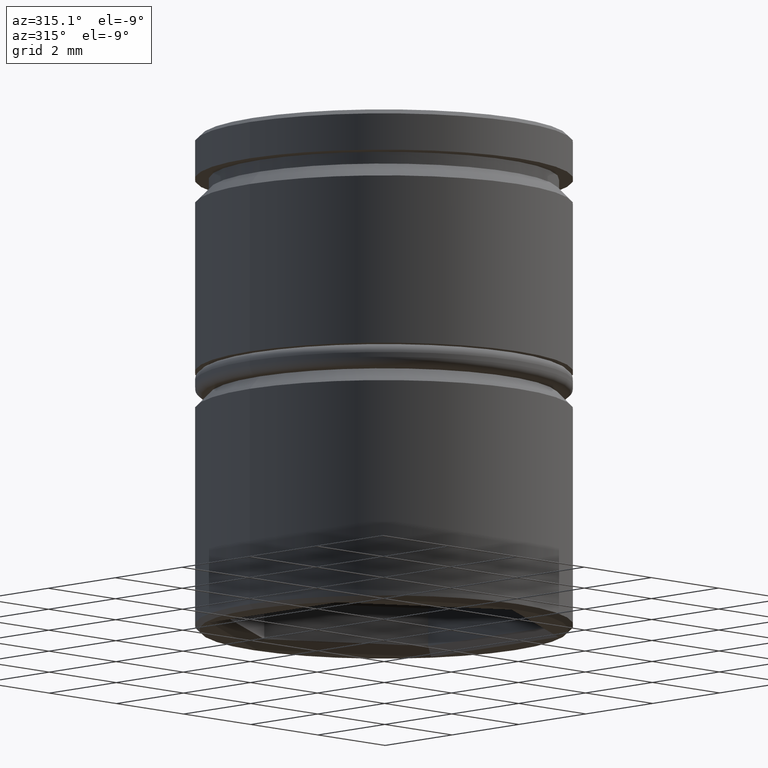
[diagram: clean part render]
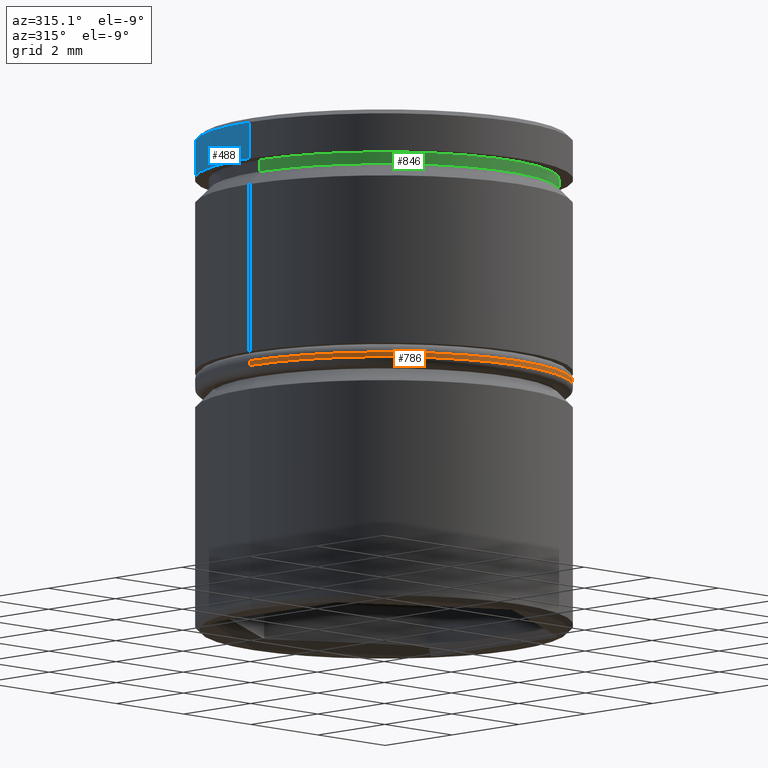
[diagram: same view with three faces highlighted in distinct colors, each labeled with its STEP entity id]
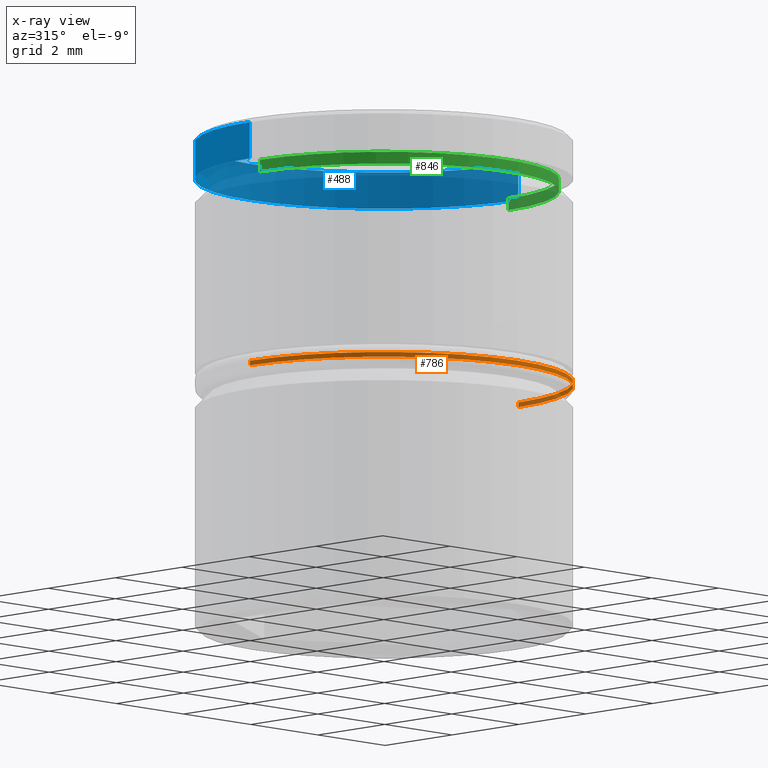
[diagram: x-ray of the same camera — body ghosted, the three highlighted faces saturated]
A machine part, auxiliary view with three faces highlighted in distinct colors.
The next image is the same camera in x-ray (body ghosted, the three faces saturated) — at least one of them is partly hidden behind the body in this view.
Their STEP definitions:

[orange] entity #786 — the highlighted cylindrical surface (partial cylindrical patch) has radius 4 mm, axis along (-0, -0, 1).
#2 = EDGE_CURVE ( 'NONE', #689, #848, #227, .T. ) ;
#6 = VERTEX_POINT ( 'NONE', #337 ) ;
#28 = DIRECTION ( 'NONE',  ( 0.000000000000000000, 0.000000000000000000, 1.000000000000000000 ) ) ;
#54 = VECTOR ( 'NONE', #299, 1000.000000000000000 ) ;
#65 = ORIENTED_EDGE ( 'NONE', *, *, #806, .T. ) ;
#110 = AXIS2_PLACEMENT_3D ( 'NONE', #873, #399, #119 ) ;
#119 = DIRECTION ( 'NONE',  ( 1.000000000000000000, 0.000000000000000000, 0.000000000000000000 ) ) ;
#124 = ORIENTED_EDGE ( 'NONE', *, *, #2, .T. ) ;
#146 = LINE ( 'NONE', #597, #305 ) ;
#157 = DIRECTION ( 'NONE',  ( 0.000000000000000000, 0.000000000000000000, -1.000000000000000000 ) ) ;
#201 = EDGE_CURVE ( 'NONE', #6, #346, #1016, .T. ) ;
#227 = CIRCLE ( 'NONE', #419, 4.000000000000000000 ) ;
#259 = CARTESIAN_POINT ( 'NONE',  ( -4.000000000000000000, 4.898587196589412829E-16, -5.200000000000000178 ) ) ;
#262 = CARTESIAN_POINT ( 'NONE',  ( 4.000000000000000000, 0.000000000000000000, -5.200000000000000178 ) ) ;
#299 = DIRECTION ( 'NONE',  ( -0.000000000000000000, -0.000000000000000000, 1.000000000000000000 ) ) ;
#305 = VECTOR ( 'NONE', #856, 1000.000000000000000 ) ;
#323 = CARTESIAN_POINT ( 'NONE',  ( 0.000000000000000000, 0.000000000000000000, -5.200000000000000178 ) ) ;
#337 = CARTESIAN_POINT ( 'NONE',  ( -4.000000000000000000, 4.898587196589412829E-16, -5.299999999999998934 ) ) ;
#346 = VERTEX_POINT ( 'NONE', #805 ) ;
#380 = CARTESIAN_POINT ( 'NONE',  ( 0.000000000000000000, 0.000000000000000000, -5.299999999999998934 ) ) ;
#399 = DIRECTION ( 'NONE',  ( -0.000000000000000000, -0.000000000000000000, 1.000000000000000000 ) ) ;
#419 = AXIS2_PLACEMENT_3D ( 'NONE', #323, #157, #795 ) ;
#422 = ORIENTED_EDGE ( 'NONE', *, *, #201, .T. ) ;
#427 = FACE_OUTER_BOUND ( 'NONE', #690, .T. ) ;
#510 = LINE ( 'NONE', #931, #54 ) ;
#597 = CARTESIAN_POINT ( 'NONE',  ( 4.000000000000000000, 0.000000000000000000, -16.81370849898475939 ) ) ;
#637 = ORIENTED_EDGE ( 'NONE', *, *, #1011, .F. ) ;
#689 = VERTEX_POINT ( 'NONE', #262 ) ;
#690 = EDGE_LOOP ( 'NONE', ( #637, #422, #65, #124 ) ) ;
#782 = AXIS2_PLACEMENT_3D ( 'NONE', #380, #28, #913 ) ;
#786 = ADVANCED_FACE ( 'NONE', ( #427 ), #1133, .T. ) ;
#795 = DIRECTION ( 'NONE',  ( -1.000000000000000000, 0.000000000000000000, 0.000000000000000000 ) ) ;
#805 = CARTESIAN_POINT ( 'NONE',  ( 4.000000000000000000, 0.000000000000000000, -5.299999999999998934 ) ) ;
#806 = EDGE_CURVE ( 'NONE', #346, #689, #146, .T. ) ;
#848 = VERTEX_POINT ( 'NONE', #259 ) ;
#856 = DIRECTION ( 'NONE',  ( -0.000000000000000000, -0.000000000000000000, 1.000000000000000000 ) ) ;
#873 = CARTESIAN_POINT ( 'NONE',  ( 0.000000000000000000, 0.000000000000000000, -16.81370849898475939 ) ) ;
#913 = DIRECTION ( 'NONE',  ( 1.000000000000000000, 0.000000000000000000, 0.000000000000000000 ) ) ;
#931 = CARTESIAN_POINT ( 'NONE',  ( -4.000000000000000000, 4.898587196589412829E-16, -16.81370849898475939 ) ) ;
#1011 = EDGE_CURVE ( 'NONE', #6, #848, #510, .T. ) ;
#1016 = CIRCLE ( 'NONE', #782, 4.000000000000000000 ) ;
#1133 = CYLINDRICAL_SURFACE ( 'NONE', #110, 4.000000000000000000 ) ;

[blue] entity #488 — the highlighted cylindrical surface (partial cylindrical patch) has radius 4 mm, axis along (-0, -0, 1).
#55 = AXIS2_PLACEMENT_3D ( 'NONE', #261, #161, #1148 ) ;
#98 = CIRCLE ( 'NONE', #55, 4.000000000000000000 ) ;
#99 = EDGE_CURVE ( 'NONE', #425, #511, #240, .T. ) ;
#114 = ORIENTED_EDGE ( 'NONE', *, *, #99, .T. ) ;
#117 = CARTESIAN_POINT ( 'NONE',  ( 4.000000000000000000, 0.000000000000000000, -0.09999999999999766020 ) ) ;
#156 = CARTESIAN_POINT ( 'NONE',  ( 0.000000000000000000, 0.000000000000000000, 0.000000000000000000 ) ) ;
#161 = DIRECTION ( 'NONE',  ( 0.000000000000000000, 0.000000000000000000, -1.000000000000000000 ) ) ;
#174 = CARTESIAN_POINT ( 'NONE',  ( 4.000000000000000000, 0.000000000000000000, 0.000000000000000000 ) ) ;
#239 = DIRECTION ( 'NONE',  ( -0.000000000000000000, -0.000000000000000000, 1.000000000000000000 ) ) ;
#240 = LINE ( 'NONE', #1150, #1088 ) ;
#246 = EDGE_LOOP ( 'NONE', ( #814, #114, #945, #872 ) ) ;
#261 = CARTESIAN_POINT ( 'NONE',  ( 0.000000000000000000, 0.000000000000000000, -0.09999999999999766020 ) ) ;
#274 = EDGE_CURVE ( 'NONE', #511, #1032, #98, .T. ) ;
#308 = CARTESIAN_POINT ( 'NONE',  ( 4.000000000000000000, 0.000000000000000000, -0.8749999999999998890 ) ) ;
#331 = FACE_OUTER_BOUND ( 'NONE', #246, .T. ) ;
#412 = CYLINDRICAL_SURFACE ( 'NONE', #1174, 4.000000000000000000 ) ;
#425 = VERTEX_POINT ( 'NONE', #614 ) ;
#445 = CIRCLE ( 'NONE', #678, 4.000000000000000000 ) ;
#488 = ADVANCED_FACE ( 'NONE', ( #331 ), #412, .T. ) ;
#511 = VERTEX_POINT ( 'NONE', #1024 ) ;
#554 = DIRECTION ( 'NONE',  ( -0.000000000000000000, -0.000000000000000000, 1.000000000000000000 ) ) ;
#559 = CARTESIAN_POINT ( 'NONE',  ( 0.000000000000000000, 0.000000000000000000, -0.8749999999999998890 ) ) ;
#609 = EDGE_CURVE ( 'NONE', #837, #425, #445, .T. ) ;
#614 = CARTESIAN_POINT ( 'NONE',  ( -4.000000000000000000, 4.898587196589412829E-16, -0.8749999999999998890 ) ) ;
#620 = DIRECTION ( 'NONE',  ( 1.000000000000000000, 0.000000000000000000, 0.000000000000000000 ) ) ;
#621 = DIRECTION ( 'NONE',  ( -0.000000000000000000, -0.000000000000000000, 1.000000000000000000 ) ) ;
#626 = VECTOR ( 'NONE', #554, 1000.000000000000000 ) ;
#641 = LINE ( 'NONE', #174, #626 ) ;
#678 = AXIS2_PLACEMENT_3D ( 'NONE', #559, #727, #902 ) ;
#691 = EDGE_CURVE ( 'NONE', #837, #1032, #641, .T. ) ;
#727 = DIRECTION ( 'NONE',  ( -0.000000000000000000, -0.000000000000000000, 1.000000000000000000 ) ) ;
#814 = ORIENTED_EDGE ( 'NONE', *, *, #609, .T. ) ;
#837 = VERTEX_POINT ( 'NONE', #308 ) ;
#872 = ORIENTED_EDGE ( 'NONE', *, *, #691, .F. ) ;
#902 = DIRECTION ( 'NONE',  ( 1.000000000000000000, 0.000000000000000000, 0.000000000000000000 ) ) ;
#945 = ORIENTED_EDGE ( 'NONE', *, *, #274, .T. ) ;
#1024 = CARTESIAN_POINT ( 'NONE',  ( -4.000000000000000000, 4.898587196589412829E-16, -0.09999999999999766020 ) ) ;
#1032 = VERTEX_POINT ( 'NONE', #117 ) ;
#1088 = VECTOR ( 'NONE', #621, 1000.000000000000000 ) ;
#1148 = DIRECTION ( 'NONE',  ( 1.000000000000000000, 0.000000000000000000, 0.000000000000000000 ) ) ;
#1150 = CARTESIAN_POINT ( 'NONE',  ( -4.000000000000000000, 4.898587196589412829E-16, 0.000000000000000000 ) ) ;
#1174 = AXIS2_PLACEMENT_3D ( 'NONE', #156, #239, #620 ) ;

[green] entity #846 — the highlighted cylindrical surface (partial cylindrical patch) has radius 3.7 mm, axis along (-0, -0, 1).
#1 = DIRECTION ( 'NONE',  ( -0.000000000000000000, -0.000000000000000000, 1.000000000000000000 ) ) ;
#5 = CARTESIAN_POINT ( 'NONE',  ( 0.000000000000000000, 0.000000000000000000, 0.000000000000000000 ) ) ;
#27 = ORIENTED_EDGE ( 'NONE', *, *, #612, .T. ) ;
#76 = DIRECTION ( 'NONE',  ( 1.000000000000000000, 0.000000000000000000, 0.000000000000000000 ) ) ;
#88 = LINE ( 'NONE', #184, #1089 ) ;
#91 = CARTESIAN_POINT ( 'NONE',  ( 3.700000000000000178, 0.000000000000000000, -0.8749999999999998890 ) ) ;
#115 = CARTESIAN_POINT ( 'NONE',  ( 3.700000000000000178, 0.000000000000000000, -1.125000000000000222 ) ) ;
#118 = ORIENTED_EDGE ( 'NONE', *, *, #676, .F. ) ;
#138 = VERTEX_POINT ( 'NONE', #449 ) ;
#184 = CARTESIAN_POINT ( 'NONE',  ( 3.700000000000000178, 0.000000000000000000, 0.000000000000000000 ) ) ;
#248 = VECTOR ( 'NONE', #1076, 1000.000000000000000 ) ;
#333 = ORIENTED_EDGE ( 'NONE', *, *, #619, .T. ) ;
#351 = DIRECTION ( 'NONE',  ( -0.000000000000000000, -0.000000000000000000, 1.000000000000000000 ) ) ;
#372 = DIRECTION ( 'NONE',  ( 1.000000000000000000, 0.000000000000000000, 0.000000000000000000 ) ) ;
#449 = CARTESIAN_POINT ( 'NONE',  ( -3.700000000000000178, 4.531193156845206201E-16, -1.125000000000000222 ) ) ;
#538 = EDGE_LOOP ( 'NONE', ( #118, #27, #333, #1164 ) ) ;
#551 = VERTEX_POINT ( 'NONE', #857 ) ;
#556 = CYLINDRICAL_SURFACE ( 'NONE', #979, 3.700000000000000178 ) ;
#560 = FACE_OUTER_BOUND ( 'NONE', #538, .T. ) ;
#612 = EDGE_CURVE ( 'NONE', #138, #697, #674, .T. ) ;
#619 = EDGE_CURVE ( 'NONE', #697, #960, #88, .T. ) ;
#638 = EDGE_CURVE ( 'NONE', #551, #960, #821, .T. ) ;
#674 = CIRCLE ( 'NONE', #1092, 3.700000000000000178 ) ;
#676 = EDGE_CURVE ( 'NONE', #138, #551, #1058, .T. ) ;
#697 = VERTEX_POINT ( 'NONE', #115 ) ;
#735 = CARTESIAN_POINT ( 'NONE',  ( -3.700000000000000178, 4.531193156845206201E-16, 0.000000000000000000 ) ) ;
#819 = DIRECTION ( 'NONE',  ( -0.000000000000000000, -0.000000000000000000, 1.000000000000000000 ) ) ;
#821 = CIRCLE ( 'NONE', #853, 3.700000000000000178 ) ;
#846 = ADVANCED_FACE ( 'NONE', ( #560 ), #556, .T. ) ;
#853 = AXIS2_PLACEMENT_3D ( 'NONE', #978, #819, #899 ) ;
#857 = CARTESIAN_POINT ( 'NONE',  ( -3.700000000000000178, 4.531193156845206201E-16, -0.8749999999999998890 ) ) ;
#899 = DIRECTION ( 'NONE',  ( 1.000000000000000000, 0.000000000000000000, 0.000000000000000000 ) ) ;
#960 = VERTEX_POINT ( 'NONE', #91 ) ;
#974 = CARTESIAN_POINT ( 'NONE',  ( 0.000000000000000000, 0.000000000000000000, -1.125000000000000222 ) ) ;
#978 = CARTESIAN_POINT ( 'NONE',  ( 0.000000000000000000, 0.000000000000000000, -0.8749999999999998890 ) ) ;
#979 = AXIS2_PLACEMENT_3D ( 'NONE', #5, #1, #372 ) ;
#1058 = LINE ( 'NONE', #735, #248 ) ;
#1076 = DIRECTION ( 'NONE',  ( -0.000000000000000000, -0.000000000000000000, 1.000000000000000000 ) ) ;
#1089 = VECTOR ( 'NONE', #1166, 1000.000000000000000 ) ;
#1092 = AXIS2_PLACEMENT_3D ( 'NONE', #974, #351, #76 ) ;
#1164 = ORIENTED_EDGE ( 'NONE', *, *, #638, .F. ) ;
#1166 = DIRECTION ( 'NONE',  ( -0.000000000000000000, -0.000000000000000000, 1.000000000000000000 ) ) ;